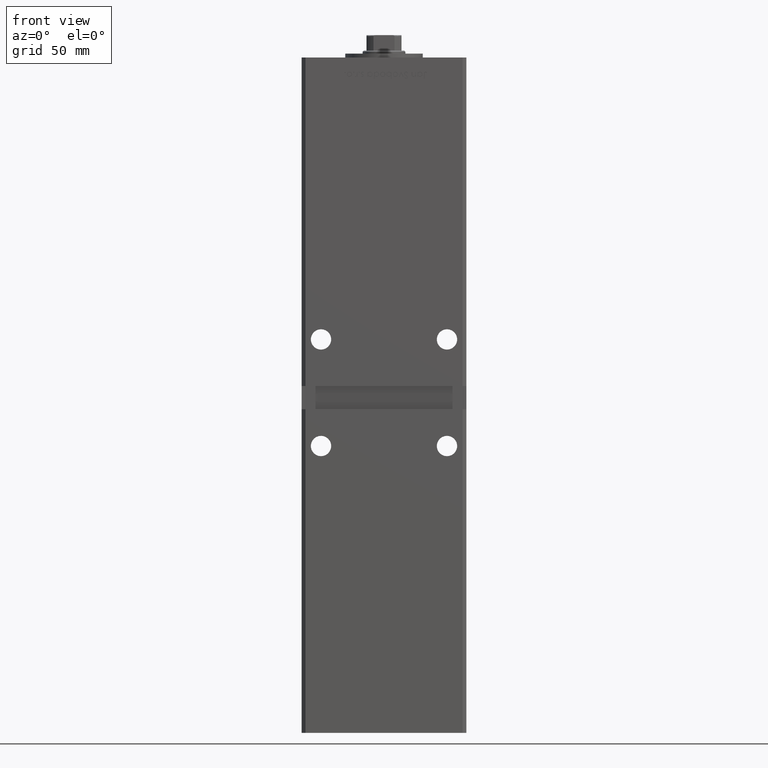
[diagram: clean part render]
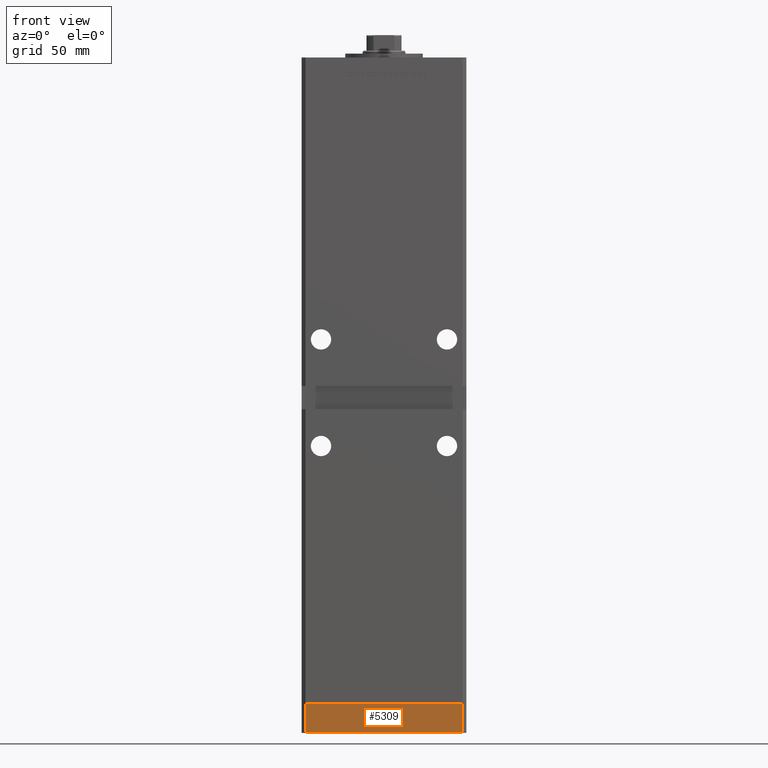
[diagram: same view with one face highlighted and labeled with its STEP entity id]
A machine part, front view. The second image highlights one B-rep face of the part: STEP entity #5309.
In plain terms, the highlighted planar face has unit normal (0, -1, -0).
Its self-contained STEP definition (entity closure, byte-faithful):
#1077 = CARTESIAN_POINT ( 'NONE',  ( -40.49999999999999289, -37.50000000000002132, 0.000000000000000000 ) ) ;
#2752 = DIRECTION ( 'NONE',  ( 1.000000000000000000, 1.713307136767217096E-16, 0.000000000000000000 ) ) ;
#3278 = CARTESIAN_POINT ( 'NONE',  ( -40.49999999999999289, -37.50000000000002132, 0.000000000000000000 ) ) ;
#4285 = EDGE_CURVE ( 'NONE', #14433, #9143, #7281, .T. ) ;
#5199 = VECTOR ( 'NONE', #8032, 1000.000000000000000 ) ;
#5309 = ADVANCED_FACE ( 'NONE', ( #42801 ), #34735, .T. ) ;
#5982 = CARTESIAN_POINT ( 'NONE',  ( -40.49999999999999289, -37.50000000000002132, -15.00000000000000000 ) ) ;
#7281 = LINE ( 'NONE', #3278, #16621 ) ;
#7311 = VECTOR ( 'NONE', #11786, 1000.000000000000000 ) ;
#8032 = DIRECTION ( 'NONE',  ( 0.000000000000000000, 0.000000000000000000, 1.000000000000000000 ) ) ;
#9143 = VERTEX_POINT ( 'NONE', #16923 ) ;
#11786 = DIRECTION ( 'NONE',  ( 1.000000000000000000, 1.713307136767217096E-16, 0.000000000000000000 ) ) ;
#14433 = VERTEX_POINT ( 'NONE', #1077 ) ;
#15587 = DIRECTION ( 'NONE',  ( 0.000000000000000000, 0.000000000000000000, 1.000000000000000000 ) ) ;
#15835 = CARTESIAN_POINT ( 'NONE',  ( 40.50000000000000000, -37.50000000000000711, -15.00000000000000000 ) ) ;
#16621 = VECTOR ( 'NONE', #2752, 1000.000000000000000 ) ;
#16923 = CARTESIAN_POINT ( 'NONE',  ( 40.50000000000000000, -37.50000000000000711, 0.000000000000000000 ) ) ;
#17293 = EDGE_LOOP ( 'NONE', ( #52207, #25294, #18825, #42747 ) ) ;
#18385 = AXIS2_PLACEMENT_3D ( 'NONE', #5982, #51141, #30719 ) ;
#18825 = ORIENTED_EDGE ( 'NONE', *, *, #49247, .T. ) ;
#21743 = VERTEX_POINT ( 'NONE', #29521 ) ;
#22200 = CARTESIAN_POINT ( 'NONE',  ( -40.49999999999999289, -37.50000000000002132, -15.00000000000000000 ) ) ;
#25121 = VECTOR ( 'NONE', #15587, 1000.000000000000000 ) ;
#25294 = ORIENTED_EDGE ( 'NONE', *, *, #34446, .F. ) ;
#26237 = EDGE_CURVE ( 'NONE', #21743, #9143, #45124, .T. ) ;
#29521 = CARTESIAN_POINT ( 'NONE',  ( 40.50000000000000000, -37.50000000000000711, -15.00000000000000000 ) ) ;
#29624 = VERTEX_POINT ( 'NONE', #22200 ) ;
#30719 = DIRECTION ( 'NONE',  ( 1.000000000000000000, 1.713307136767217096E-16, 0.000000000000000000 ) ) ;
#31727 = LINE ( 'NONE', #48111, #25121 ) ;
#34446 = EDGE_CURVE ( 'NONE', #29624, #14433, #31727, .T. ) ;
#34735 = PLANE ( 'NONE',  #18385 ) ;
#36513 = CARTESIAN_POINT ( 'NONE',  ( -40.49999999999999289, -37.50000000000002132, -15.00000000000000000 ) ) ;
#36780 = LINE ( 'NONE', #36513, #7311 ) ;
#42747 = ORIENTED_EDGE ( 'NONE', *, *, #26237, .T. ) ;
#42801 = FACE_OUTER_BOUND ( 'NONE', #17293, .T. ) ;
#45124 = LINE ( 'NONE', #15835, #5199 ) ;
#48111 = CARTESIAN_POINT ( 'NONE',  ( -40.49999999999999289, -37.50000000000002132, -15.00000000000000000 ) ) ;
#49247 = EDGE_CURVE ( 'NONE', #29624, #21743, #36780, .T. ) ;
#51141 = DIRECTION ( 'NONE',  ( 1.713307136767217096E-16, -1.000000000000000000, 0.000000000000000000 ) ) ;
#52207 = ORIENTED_EDGE ( 'NONE', *, *, #4285, .F. ) ;